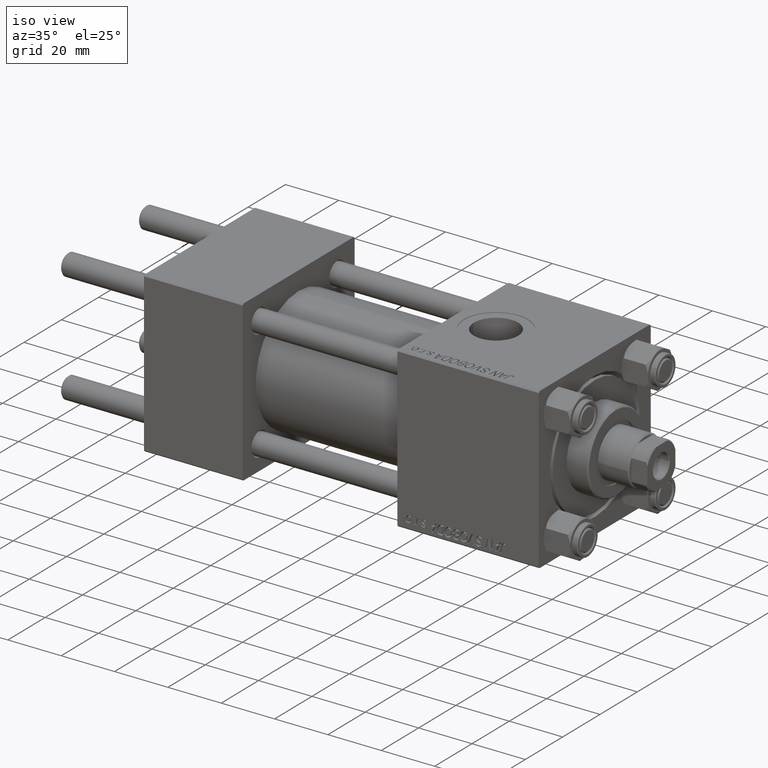
[diagram: clean part render]
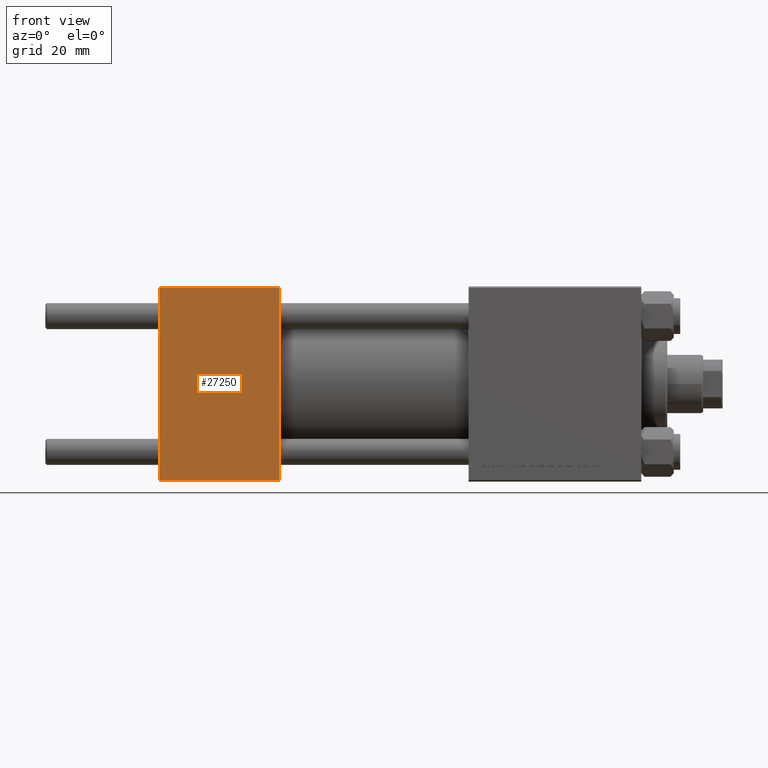
[diagram: tour spotlight — one face highlighted and labeled with its STEP entity id]
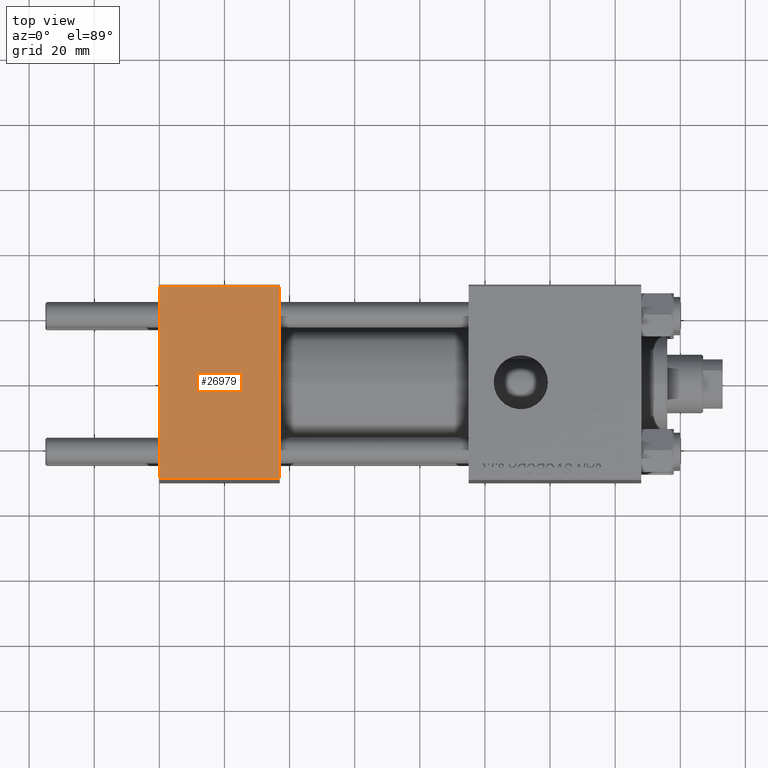
[diagram: tour spotlight — one face highlighted and labeled with its STEP entity id]
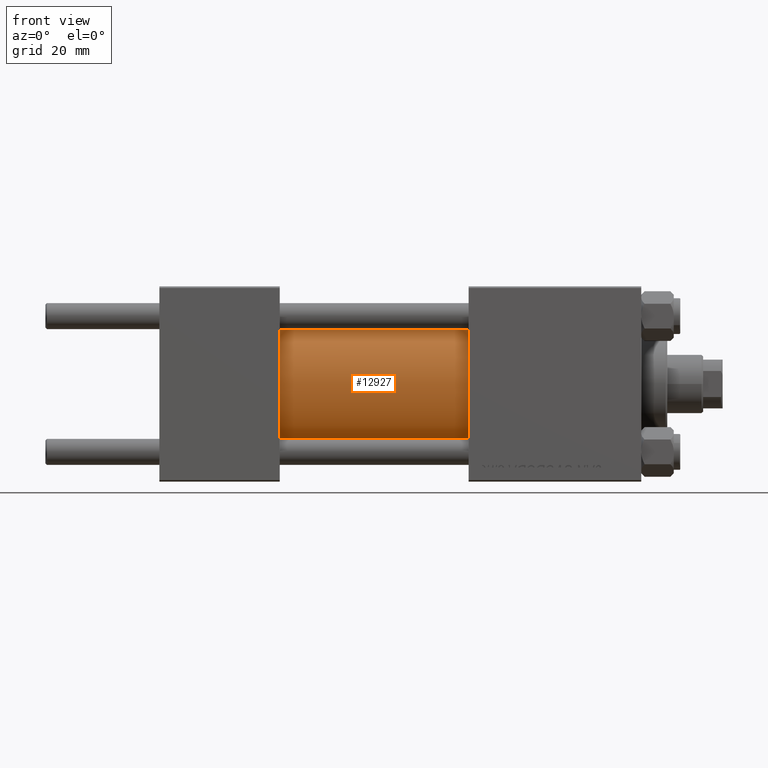
[diagram: tour spotlight — one face highlighted and labeled with its STEP entity id]
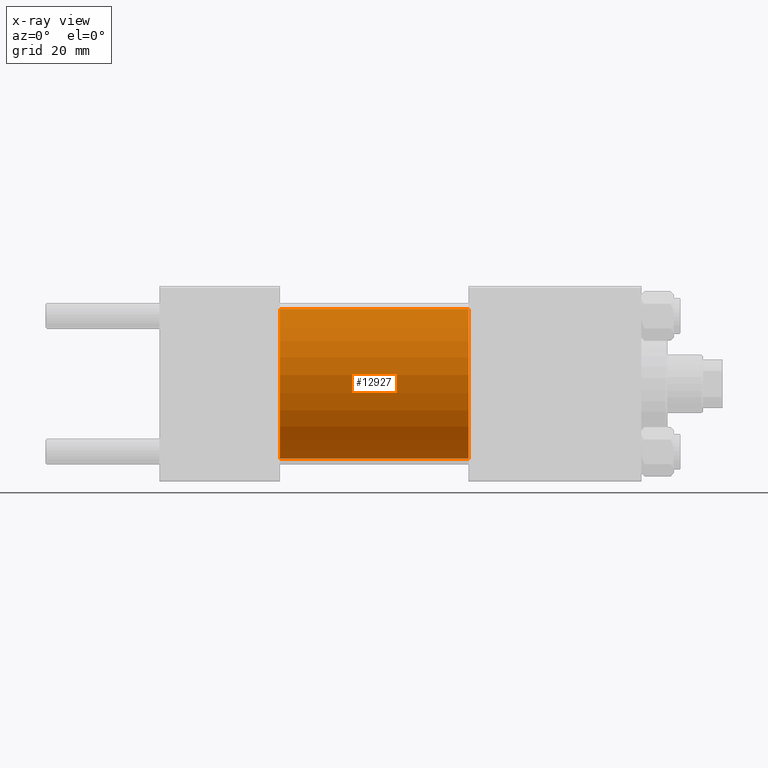
[diagram: x-ray of the same camera — body ghosted, this tour face saturated]
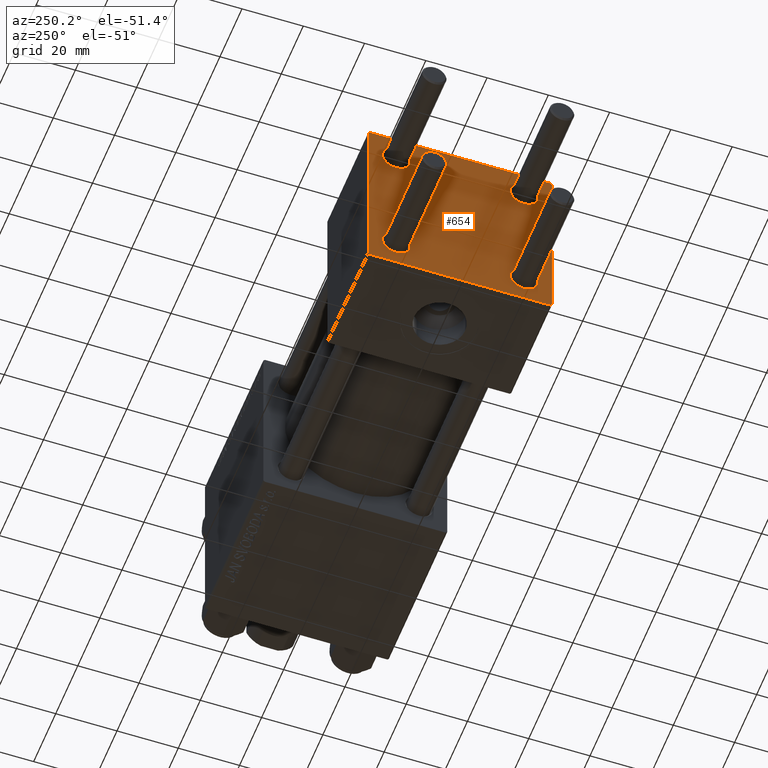
[diagram: tour spotlight — one face highlighted and labeled with its STEP entity id]
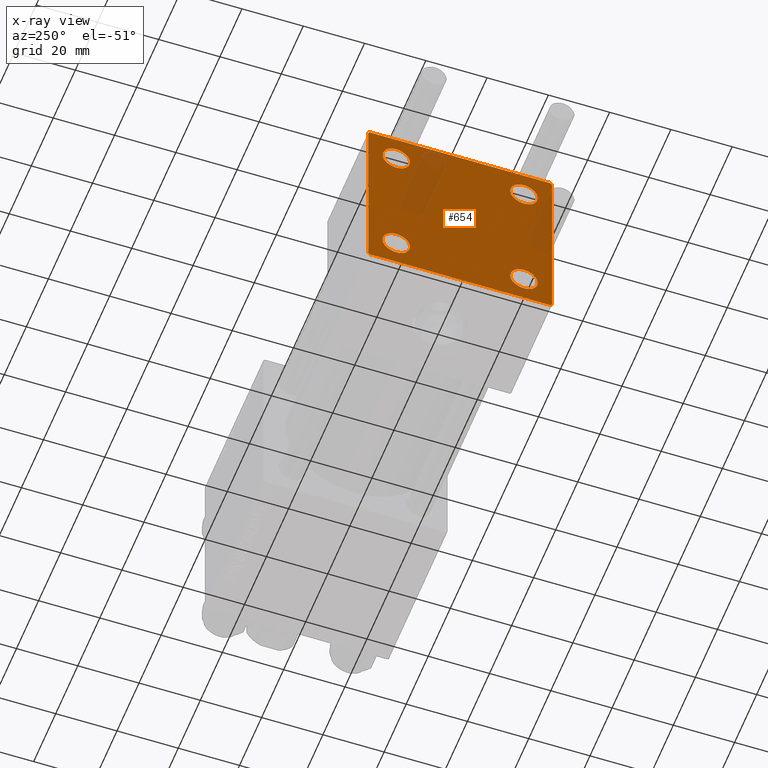
[diagram: x-ray of the same camera — body ghosted, this tour face saturated]
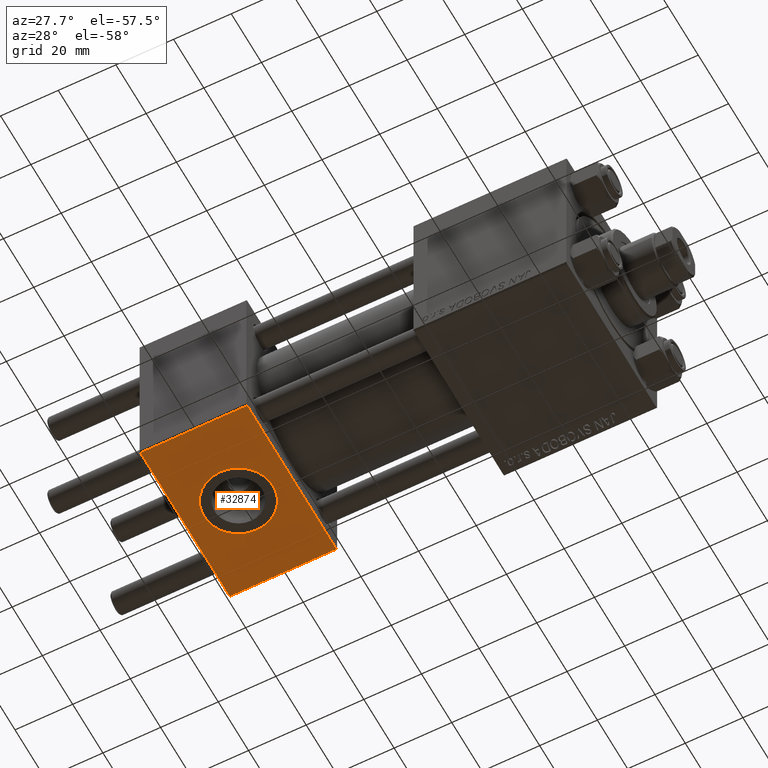
[diagram: tour spotlight — one face highlighted and labeled with its STEP entity id]
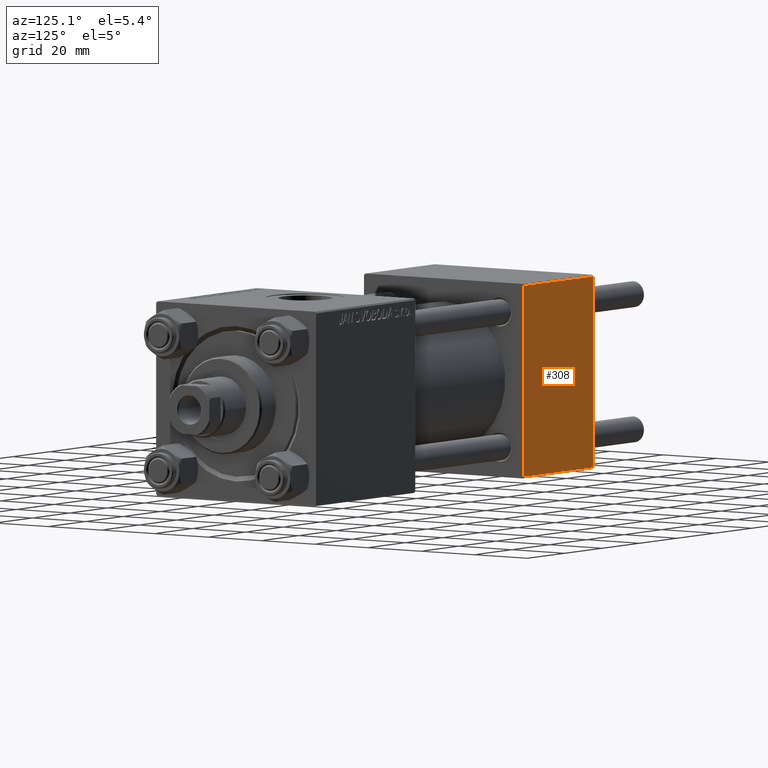
[diagram: tour spotlight — one face highlighted and labeled with its STEP entity id]
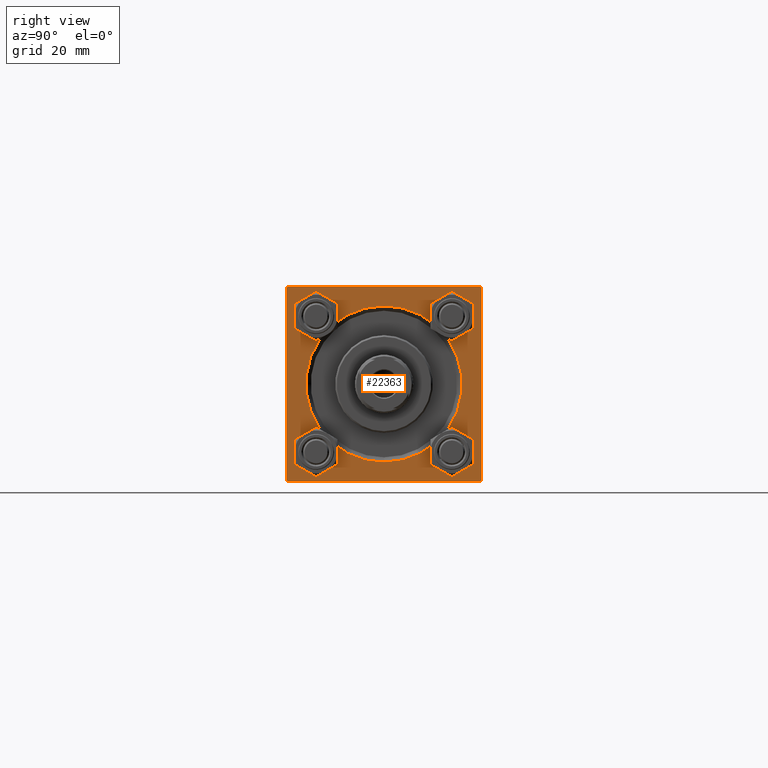
[diagram: tour spotlight — one face highlighted and labeled with its STEP entity id]
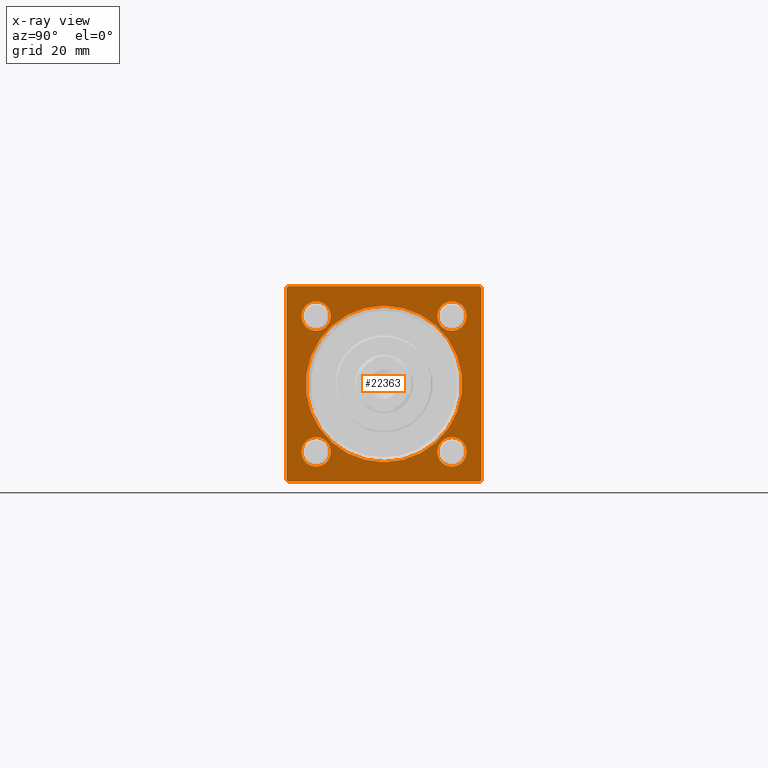
[diagram: x-ray of the same camera — body ghosted, this tour face saturated]
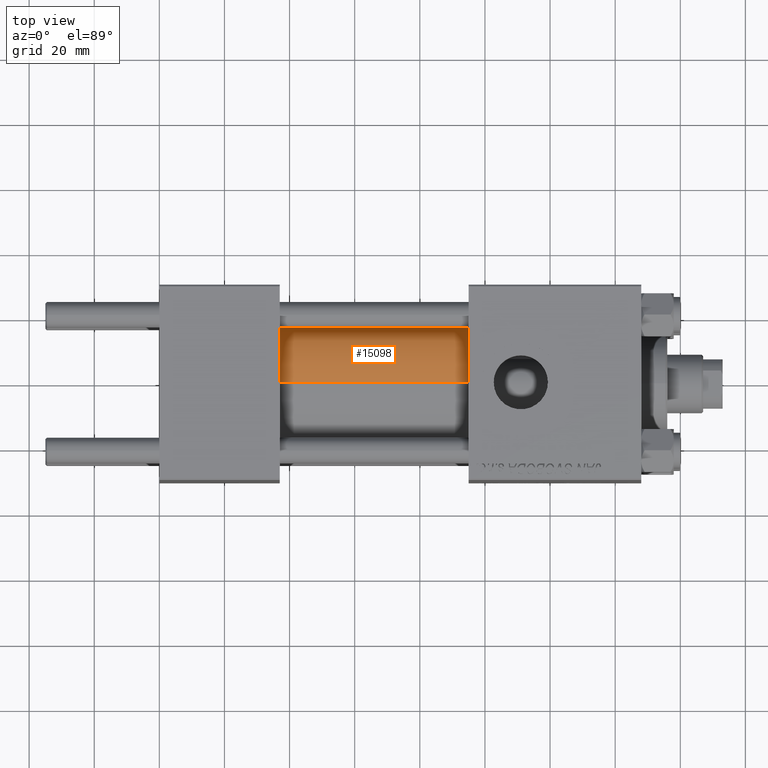
[diagram: tour spotlight — one face highlighted and labeled with its STEP entity id]
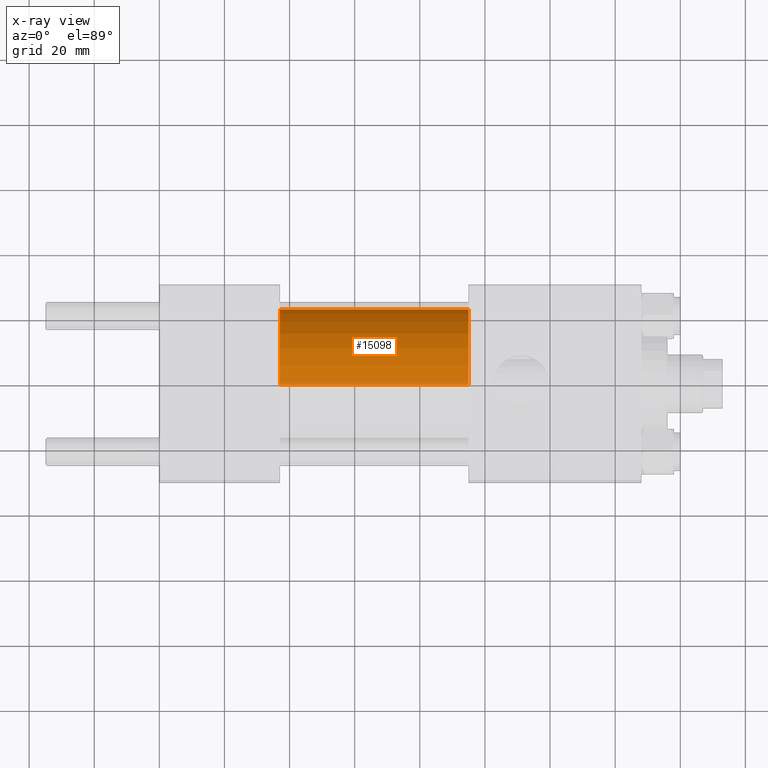
[diagram: x-ray of the same camera — body ghosted, this tour face saturated]
A machine part: a face-by-face anatomy tour. The part has 1134 B-rep faces; the first image is the clean iso view, then the 8 largest visible faces are spotlighted one at a time (largest first), each with its STEP entity span.

Face 1 — front view, entity #27250. In plain terms, the highlighted planar face has unit normal (0, 1, 0).
Definition (entity closure, byte-faithful):
#450 = DIRECTION ( 'NONE',  ( -1.000000000000000000, 0.000000000000000000, 0.000000000000000000 ) ) ;
#3045 = EDGE_CURVE ( 'NONE', #5350, #38853, #43636, .T. ) ;
#3628 = FACE_OUTER_BOUND ( 'NONE', #23692, .T. ) ;
#3634 = CARTESIAN_POINT ( 'NONE',  ( 0.000000000000000000, -30.00000000000000000, -29.50000000000001776 ) ) ;
#4241 = LINE ( 'NONE', #15364, #35834 ) ;
#5350 = VERTEX_POINT ( 'NONE', #17236 ) ;
#9232 = VECTOR ( 'NONE', #16888, 1000.000000000000000 ) ;
#11129 = VERTEX_POINT ( 'NONE', #25975 ) ;
#11260 = ORIENTED_EDGE ( 'NONE', *, *, #3045, .T. ) ;
#14431 = CARTESIAN_POINT ( 'NONE',  ( 37.00000000000000000, -30.00000000000000000, 29.99999999999999289 ) ) ;
#15364 = CARTESIAN_POINT ( 'NONE',  ( 37.00000000000000000, -30.00000000000000000, 29.49999999999999289 ) ) ;
#15486 = EDGE_CURVE ( 'NONE', #46972, #11129, #36639, .T. ) ;
#16234 = VECTOR ( 'NONE', #27997, 1000.000000000000000 ) ;
#16888 = DIRECTION ( 'NONE',  ( 0.000000000000000000, 0.000000000000000000, -1.000000000000000000 ) ) ;
#17236 = CARTESIAN_POINT ( 'NONE',  ( 0.000000000000000000, -30.00000000000000000, 29.49999999999999289 ) ) ;
#19030 = DIRECTION ( 'NONE',  ( -0.000000000000000000, 1.000000000000000000, 0.000000000000000000 ) ) ;
#20418 = CARTESIAN_POINT ( 'NONE',  ( 0.000000000000000000, -30.00000000000000000, 29.99999999999999289 ) ) ;
#20877 = VECTOR ( 'NONE', #41417, 1000.000000000000000 ) ;
#23692 = EDGE_LOOP ( 'NONE', ( #11260, #30772, #34126, #29053 ) ) ;
#23709 = CARTESIAN_POINT ( 'NONE',  ( 37.00000000000000000, -30.00000000000000000, -29.50000000000001776 ) ) ;
#25975 = CARTESIAN_POINT ( 'NONE',  ( 37.00000000000000000, -30.00000000000000000, -29.50000000000001776 ) ) ;
#27250 = ADVANCED_FACE ( 'NONE', ( #3628 ), #42237, .F. ) ;
#27997 = DIRECTION ( 'NONE',  ( 1.000000000000000000, 0.000000000000000000, 0.000000000000000000 ) ) ;
#29053 = ORIENTED_EDGE ( 'NONE', *, *, #36655, .T. ) ;
#29991 = EDGE_CURVE ( 'NONE', #38853, #11129, #49772, .T. ) ;
#30772 = ORIENTED_EDGE ( 'NONE', *, *, #29991, .T. ) ;
#33922 = CARTESIAN_POINT ( 'NONE',  ( 37.00000000000000000, -30.00000000000000000, 29.99999999999999289 ) ) ;
#34126 = ORIENTED_EDGE ( 'NONE', *, *, #15486, .F. ) ;
#35834 = VECTOR ( 'NONE', #450, 1000.000000000000000 ) ;
#36639 = LINE ( 'NONE', #14431, #20877 ) ;
#36655 = EDGE_CURVE ( 'NONE', #46972, #5350, #4241, .T. ) ;
#38853 = VERTEX_POINT ( 'NONE', #3634 ) ;
#39591 = CARTESIAN_POINT ( 'NONE',  ( 37.00000000000000000, -30.00000000000000000, 29.49999999999999289 ) ) ;
#41417 = DIRECTION ( 'NONE',  ( 0.000000000000000000, 0.000000000000000000, -1.000000000000000000 ) ) ;
#42237 = PLANE ( 'NONE',  #48541 ) ;
#43636 = LINE ( 'NONE', #20418, #9232 ) ;
#46972 = VERTEX_POINT ( 'NONE', #39591 ) ;
#48541 = AXIS2_PLACEMENT_3D ( 'NONE', #33922, #19030, #48807 ) ;
#48807 = DIRECTION ( 'NONE',  ( 0.000000000000000000, -0.000000000000000000, 1.000000000000000000 ) ) ;
#49772 = LINE ( 'NONE', #23709, #16234 ) ;

Face 2 — top view, entity #26979. In plain terms, the highlighted planar face has unit normal (0, 0, -1).
Definition (entity closure, byte-faithful):
#4334 = LINE ( 'NONE', #12925, #36756 ) ;
#4792 = VECTOR ( 'NONE', #43562, 1000.000000000000000 ) ;
#7649 = ORIENTED_EDGE ( 'NONE', *, *, #41202, .T. ) ;
#8932 = ORIENTED_EDGE ( 'NONE', *, *, #13748, .T. ) ;
#9465 = CARTESIAN_POINT ( 'NONE',  ( 37.00000000000000000, 29.99999999999999289, 30.00000000000000000 ) ) ;
#9786 = DIRECTION ( 'NONE',  ( 0.000000000000000000, 1.156482317317871725E-16, -1.000000000000000000 ) ) ;
#9812 = CARTESIAN_POINT ( 'NONE',  ( 37.00000000000000000, -29.50000000000000000, 29.99999999999999289 ) ) ;
#11785 = LINE ( 'NONE', #20591, #4792 ) ;
#12207 = CARTESIAN_POINT ( 'NONE',  ( 0.000000000000000000, 29.49999999999999289, 30.00000000000000000 ) ) ;
#12925 = CARTESIAN_POINT ( 'NONE',  ( 0.000000000000000000, 29.99999999999999289, 30.00000000000000000 ) ) ;
#13748 = EDGE_CURVE ( 'NONE', #46529, #39802, #11785, .T. ) ;
#16322 = VERTEX_POINT ( 'NONE', #18468 ) ;
#18296 = CARTESIAN_POINT ( 'NONE',  ( 37.00000000000000000, 29.49999999999999289, 30.00000000000000000 ) ) ;
#18468 = CARTESIAN_POINT ( 'NONE',  ( 0.000000000000000000, -29.49999999999998579, 29.99999999999999289 ) ) ;
#18726 = AXIS2_PLACEMENT_3D ( 'NONE', #31806, #9786, #47214 ) ;
#20063 = LINE ( 'NONE', #9465, #31793 ) ;
#20591 = CARTESIAN_POINT ( 'NONE',  ( 0.000000000000000000, 29.49999999999999289, 30.00000000000000000 ) ) ;
#21535 = CARTESIAN_POINT ( 'NONE',  ( 37.00000000000000000, -29.49999999999998579, 29.99999999999999289 ) ) ;
#25182 = PLANE ( 'NONE',  #18726 ) ;
#25426 = FACE_OUTER_BOUND ( 'NONE', #37787, .T. ) ;
#26979 = ADVANCED_FACE ( 'NONE', ( #25426 ), #25182, .F. ) ;
#28978 = LINE ( 'NONE', #9812, #30567 ) ;
#30284 = ORIENTED_EDGE ( 'NONE', *, *, #47144, .T. ) ;
#30567 = VECTOR ( 'NONE', #36795, 1000.000000000000000 ) ;
#31793 = VECTOR ( 'NONE', #35706, 1000.000000000000000 ) ;
#31806 = CARTESIAN_POINT ( 'NONE',  ( 37.00000000000000000, 29.99999999999999289, 30.00000000000000000 ) ) ;
#35706 = DIRECTION ( 'NONE',  ( 0.000000000000000000, -1.000000000000000000, -1.156482317317871725E-16 ) ) ;
#36198 = EDGE_CURVE ( 'NONE', #46529, #47744, #20063, .T. ) ;
#36756 = VECTOR ( 'NONE', #42683, 1000.000000000000000 ) ;
#36795 = DIRECTION ( 'NONE',  ( 1.000000000000000000, 0.000000000000000000, 0.000000000000000000 ) ) ;
#37787 = EDGE_LOOP ( 'NONE', ( #7649, #30284, #40263, #8932 ) ) ;
#39802 = VERTEX_POINT ( 'NONE', #12207 ) ;
#40263 = ORIENTED_EDGE ( 'NONE', *, *, #36198, .F. ) ;
#41202 = EDGE_CURVE ( 'NONE', #39802, #16322, #4334, .T. ) ;
#42683 = DIRECTION ( 'NONE',  ( 0.000000000000000000, -1.000000000000000000, -1.156482317317871725E-16 ) ) ;
#43562 = DIRECTION ( 'NONE',  ( -1.000000000000000000, 0.000000000000000000, 0.000000000000000000 ) ) ;
#46529 = VERTEX_POINT ( 'NONE', #18296 ) ;
#47144 = EDGE_CURVE ( 'NONE', #16322, #47744, #28978, .T. ) ;
#47214 = DIRECTION ( 'NONE',  ( 0.000000000000000000, 1.000000000000000000, 1.156482317317871725E-16 ) ) ;
#47744 = VERTEX_POINT ( 'NONE', #21535 ) ;

Face 3 — front view, entity #12927. An x-ray twin of the same camera follows (body ghosted, this face saturated) — the face is partly hidden behind the body. In plain terms, the highlighted cylindrical surface (partial cylindrical patch) has radius 23 mm, axis along (-1, -0, -0).
Definition (entity closure, byte-faithful):
#438 = CARTESIAN_POINT ( 'NONE',  ( 95.00000000000000000, 0.000000000000000000, 23.00000000000000000 ) ) ;
#1209 = CARTESIAN_POINT ( 'NONE',  ( 95.00000000000000000, 0.000000000000000000, 23.00000000000000000 ) ) ;
#1888 = CYLINDRICAL_SURFACE ( 'NONE', #15842, 23.00000000000000000 ) ;
#1906 = EDGE_CURVE ( 'NONE', #12441, #39209, #23956, .T. ) ;
#2383 = DIRECTION ( 'NONE',  ( 0.000000000000000000, 0.000000000000000000, 1.000000000000000000 ) ) ;
#2573 = DIRECTION ( 'NONE',  ( 0.000000000000000000, 0.000000000000000000, -1.000000000000000000 ) ) ;
#5090 = CARTESIAN_POINT ( 'NONE',  ( 95.00000000000000000, 2.816687638038911957E-15, -23.00000000000000000 ) ) ;
#5593 = VECTOR ( 'NONE', #12563, 1000.000000000000000 ) ;
#6378 = CARTESIAN_POINT ( 'NONE',  ( 95.00000000000000000, 0.000000000000000000, 0.000000000000000000 ) ) ;
#8178 = CARTESIAN_POINT ( 'NONE',  ( 37.00000000000000000, 2.816687638038911957E-15, -23.00000000000000000 ) ) ;
#9200 = ORIENTED_EDGE ( 'NONE', *, *, #44729, .F. ) ;
#10316 = CARTESIAN_POINT ( 'NONE',  ( 37.00000000000000000, 0.000000000000000000, 23.00000000000000000 ) ) ;
#12408 = DIRECTION ( 'NONE',  ( -1.000000000000000000, -0.000000000000000000, -0.000000000000000000 ) ) ;
#12441 = VERTEX_POINT ( 'NONE', #1209 ) ;
#12563 = DIRECTION ( 'NONE',  ( -1.000000000000000000, -0.000000000000000000, -0.000000000000000000 ) ) ;
#12777 = DIRECTION ( 'NONE',  ( 1.000000000000000000, 0.000000000000000000, 0.000000000000000000 ) ) ;
#12892 = CARTESIAN_POINT ( 'NONE',  ( 37.00000000000000000, 0.000000000000000000, 0.000000000000000000 ) ) ;
#12927 = ADVANCED_FACE ( 'NONE', ( #36706 ), #1888, .T. ) ;
#14795 = EDGE_CURVE ( 'NONE', #41622, #23012, #49908, .T. ) ;
#15842 = AXIS2_PLACEMENT_3D ( 'NONE', #40006, #20581, #2383 ) ;
#16437 = LINE ( 'NONE', #5090, #31103 ) ;
#19620 = LINE ( 'NONE', #438, #5593 ) ;
#20581 = DIRECTION ( 'NONE',  ( -1.000000000000000000, -0.000000000000000000, -0.000000000000000000 ) ) ;
#23012 = VERTEX_POINT ( 'NONE', #8178 ) ;
#23145 = AXIS2_PLACEMENT_3D ( 'NONE', #6378, #12777, #2573 ) ;
#23956 = CIRCLE ( 'NONE', #23145, 23.00000000000000000 ) ;
#25630 = ORIENTED_EDGE ( 'NONE', *, *, #14795, .T. ) ;
#28267 = DIRECTION ( 'NONE',  ( 0.000000000000000000, 0.000000000000000000, 1.000000000000000000 ) ) ;
#30402 = ORIENTED_EDGE ( 'NONE', *, *, #49546, .T. ) ;
#31103 = VECTOR ( 'NONE', #12408, 1000.000000000000000 ) ;
#36706 = FACE_OUTER_BOUND ( 'NONE', #39212, .T. ) ;
#39209 = VERTEX_POINT ( 'NONE', #41170 ) ;
#39212 = EDGE_LOOP ( 'NONE', ( #9200, #44735, #30402, #25630 ) ) ;
#40006 = CARTESIAN_POINT ( 'NONE',  ( 95.00000000000000000, 0.000000000000000000, 0.000000000000000000 ) ) ;
#41170 = CARTESIAN_POINT ( 'NONE',  ( 95.00000000000000000, 2.816687638038911957E-15, -23.00000000000000000 ) ) ;
#41622 = VERTEX_POINT ( 'NONE', #10316 ) ;
#41728 = AXIS2_PLACEMENT_3D ( 'NONE', #12892, #42647, #28267 ) ;
#42647 = DIRECTION ( 'NONE',  ( 1.000000000000000000, -0.000000000000000000, 0.000000000000000000 ) ) ;
#44729 = EDGE_CURVE ( 'NONE', #39209, #23012, #16437, .T. ) ;
#44735 = ORIENTED_EDGE ( 'NONE', *, *, #1906, .F. ) ;
#49546 = EDGE_CURVE ( 'NONE', #12441, #41622, #19620, .T. ) ;
#49908 = CIRCLE ( 'NONE', #41728, 23.00000000000000000 ) ;

Face 4 — auxiliary view, entity #654. An x-ray twin of the same camera follows (body ghosted, this face saturated) — the face is partly hidden behind the body. In plain terms, the highlighted planar face has unit normal (-1, 0, 0).
Definition (entity closure, byte-faithful):
#52 = EDGE_LOOP ( 'NONE', ( #25192, #8840 ) ) ;
#654 = ADVANCED_FACE ( 'NONE', ( #9948, #29112, #2858, #29357, #13737 ), #36441, .T. ) ;
#1920 = ORIENTED_EDGE ( 'NONE', *, *, #21245, .T. ) ;
#2425 = CARTESIAN_POINT ( 'NONE',  ( 0.000000000000000000, -20.84999999999999076, 25.35000000000002274 ) ) ;
#2731 = DIRECTION ( 'NONE',  ( 1.000000000000000000, -0.000000000000000000, 0.000000000000000000 ) ) ;
#2858 = FACE_BOUND ( 'NONE', #23574, .T. ) ;
#2938 = CIRCLE ( 'NONE', #13445, 4.500000000000017764 ) ;
#3021 = VERTEX_POINT ( 'NONE', #20166 ) ;
#3045 = EDGE_CURVE ( 'NONE', #5350, #38853, #43636, .T. ) ;
#3265 = LINE ( 'NONE', #37328, #41020 ) ;
#3634 = CARTESIAN_POINT ( 'NONE',  ( 0.000000000000000000, -30.00000000000000000, -29.50000000000001776 ) ) ;
#3781 = CARTESIAN_POINT ( 'NONE',  ( 0.000000000000000000, 20.84999999999999787, 25.35000000000001918 ) ) ;
#4334 = LINE ( 'NONE', #12925, #36756 ) ;
#4879 = DIRECTION ( 'NONE',  ( 0.000000000000000000, 0.7071067811865474617, -0.7071067811865474617 ) ) ;
#5350 = VERTEX_POINT ( 'NONE', #17236 ) ;
#5885 = VECTOR ( 'NONE', #10201, 1000.000000000000000 ) ;
#6441 = ORIENTED_EDGE ( 'NONE', *, *, #8352, .T. ) ;
#6557 = DIRECTION ( 'NONE',  ( 1.000000000000000000, -0.000000000000000000, 0.000000000000000000 ) ) ;
#7846 = EDGE_CURVE ( 'NONE', #41516, #18945, #21159, .T. ) ;
#8352 = EDGE_CURVE ( 'NONE', #16837, #49414, #40961, .T. ) ;
#8840 = ORIENTED_EDGE ( 'NONE', *, *, #7846, .T. ) ;
#9232 = VECTOR ( 'NONE', #16888, 1000.000000000000000 ) ;
#9702 = DIRECTION ( 'NONE',  ( -1.000000000000000000, 0.000000000000000000, -0.000000000000000000 ) ) ;
#9730 = CARTESIAN_POINT ( 'NONE',  ( 0.000000000000000000, 20.84999999999999787, 16.34999999999998366 ) ) ;
#9948 = FACE_BOUND ( 'NONE', #19121, .T. ) ;
#10201 = DIRECTION ( 'NONE',  ( 0.000000000000000000, -1.000000000000000000, -1.156482317317871725E-16 ) ) ;
#10222 = AXIS2_PLACEMENT_3D ( 'NONE', #12300, #32703, #28680 ) ;
#10232 = EDGE_LOOP ( 'NONE', ( #18129, #11372, #6441, #12780, #15019, #21712, #11984, #20051 ) ) ;
#10663 = CIRCLE ( 'NONE', #29986, 4.500000000000017764 ) ;
#10696 = CARTESIAN_POINT ( 'NONE',  ( 0.000000000000000000, 0.000000000000000000, 0.000000000000000000 ) ) ;
#10870 = EDGE_CURVE ( 'NONE', #5350, #16322, #10897, .T. ) ;
#10897 = LINE ( 'NONE', #33156, #41705 ) ;
#11372 = ORIENTED_EDGE ( 'NONE', *, *, #35005, .T. ) ;
#11396 = DIRECTION ( 'NONE',  ( -0.000000000000000000, 0.7071067811865474617, 0.7071067811865474617 ) ) ;
#11984 = ORIENTED_EDGE ( 'NONE', *, *, #41202, .F. ) ;
#11987 = CARTESIAN_POINT ( 'NONE',  ( 0.000000000000000000, 20.84999999999999787, -20.85000000000000142 ) ) ;
#12161 = ORIENTED_EDGE ( 'NONE', *, *, #40467, .T. ) ;
#12207 = CARTESIAN_POINT ( 'NONE',  ( 0.000000000000000000, 29.49999999999999289, 30.00000000000000000 ) ) ;
#12239 = EDGE_CURVE ( 'NONE', #33372, #24975, #2938, .T. ) ;
#12300 = CARTESIAN_POINT ( 'NONE',  ( 0.000000000000000000, 20.84999999999999787, 20.85000000000000142 ) ) ;
#12780 = ORIENTED_EDGE ( 'NONE', *, *, #36210, .T. ) ;
#12925 = CARTESIAN_POINT ( 'NONE',  ( 0.000000000000000000, 29.99999999999999289, 30.00000000000000000 ) ) ;
#13445 = AXIS2_PLACEMENT_3D ( 'NONE', #48198, #6557, #32554 ) ;
#13556 = LINE ( 'NONE', #21117, #26892 ) ;
#13598 = ORIENTED_EDGE ( 'NONE', *, *, #36315, .T. ) ;
#13737 = FACE_OUTER_BOUND ( 'NONE', #10232, .T. ) ;
#14229 = DIRECTION ( 'NONE',  ( -0.000000000000000000, 0.000000000000000000, 1.000000000000000000 ) ) ;
#14409 = DIRECTION ( 'NONE',  ( 0.000000000000000000, 0.000000000000000000, 1.000000000000000000 ) ) ;
#14891 = CARTESIAN_POINT ( 'NONE',  ( 0.000000000000000000, -20.84999999999999076, 20.85000000000000497 ) ) ;
#15019 = ORIENTED_EDGE ( 'NONE', *, *, #3045, .F. ) ;
#16322 = VERTEX_POINT ( 'NONE', #18468 ) ;
#16837 = VERTEX_POINT ( 'NONE', #39323 ) ;
#16888 = DIRECTION ( 'NONE',  ( 0.000000000000000000, 0.000000000000000000, -1.000000000000000000 ) ) ;
#17236 = CARTESIAN_POINT ( 'NONE',  ( 0.000000000000000000, -30.00000000000000000, 29.49999999999999289 ) ) ;
#17515 = EDGE_CURVE ( 'NONE', #39802, #3021, #39434, .T. ) ;
#17930 = CARTESIAN_POINT ( 'NONE',  ( 0.000000000000000000, 20.84999999999999787, -25.35000000000001918 ) ) ;
#18129 = ORIENTED_EDGE ( 'NONE', *, *, #18830, .T. ) ;
#18309 = ORIENTED_EDGE ( 'NONE', *, *, #12239, .T. ) ;
#18468 = CARTESIAN_POINT ( 'NONE',  ( 0.000000000000000000, -29.49999999999998579, 29.99999999999999289 ) ) ;
#18660 = DIRECTION ( 'NONE',  ( 0.000000000000000000, 0.000000000000000000, -1.000000000000000000 ) ) ;
#18830 = EDGE_CURVE ( 'NONE', #3021, #20599, #3265, .T. ) ;
#18945 = VERTEX_POINT ( 'NONE', #45405 ) ;
#19045 = AXIS2_PLACEMENT_3D ( 'NONE', #14891, #41626, #37590 ) ;
#19071 = CARTESIAN_POINT ( 'NONE',  ( 0.000000000000000000, -20.84999999999999076, -20.85000000000000497 ) ) ;
#19121 = EDGE_LOOP ( 'NONE', ( #12161, #18309 ) ) ;
#19774 = AXIS2_PLACEMENT_3D ( 'NONE', #10696, #9702, #14229 ) ;
#20051 = ORIENTED_EDGE ( 'NONE', *, *, #17515, .T. ) ;
#20166 = CARTESIAN_POINT ( 'NONE',  ( 0.000000000000000000, 29.99999999999999289, 29.50000000000000000 ) ) ;
#20418 = CARTESIAN_POINT ( 'NONE',  ( 0.000000000000000000, -30.00000000000000000, 29.99999999999999289 ) ) ;
#20599 = VERTEX_POINT ( 'NONE', #34938 ) ;
#21117 = CARTESIAN_POINT ( 'NONE',  ( 0.000000000000000000, 29.74999999999957723, -29.75000000000040501 ) ) ;
#21159 = CIRCLE ( 'NONE', #27580, 4.500000000000017764 ) ;
#21245 = EDGE_CURVE ( 'NONE', #48244, #36743, #31434, .T. ) ;
#21712 = ORIENTED_EDGE ( 'NONE', *, *, #10870, .T. ) ;
#21905 = CARTESIAN_POINT ( 'NONE',  ( 0.000000000000000000, -20.84999999999999076, -20.85000000000000497 ) ) ;
#22669 = EDGE_CURVE ( 'NONE', #18945, #41516, #33060, .T. ) ;
#23574 = EDGE_LOOP ( 'NONE', ( #47550, #1920 ) ) ;
#23729 = CIRCLE ( 'NONE', #47903, 4.500000000000017764 ) ;
#23730 = CARTESIAN_POINT ( 'NONE',  ( 0.000000000000000000, -20.84999999999999076, 16.34999999999998721 ) ) ;
#23845 = DIRECTION ( 'NONE',  ( 1.000000000000000000, -0.000000000000000000, 0.000000000000000000 ) ) ;
#24032 = VECTOR ( 'NONE', #4879, 1000.000000000000114 ) ;
#24975 = VERTEX_POINT ( 'NONE', #2425 ) ;
#25192 = ORIENTED_EDGE ( 'NONE', *, *, #22669, .T. ) ;
#25353 = VECTOR ( 'NONE', #43026, 1000.000000000000114 ) ;
#25591 = DIRECTION ( 'NONE',  ( 1.000000000000000000, -0.000000000000000000, 0.000000000000000000 ) ) ;
#26656 = AXIS2_PLACEMENT_3D ( 'NONE', #19071, #34458, #31409 ) ;
#26892 = VECTOR ( 'NONE', #48843, 999.9999999999998863 ) ;
#27580 = AXIS2_PLACEMENT_3D ( 'NONE', #21905, #2731, #33510 ) ;
#28634 = CARTESIAN_POINT ( 'NONE',  ( 0.000000000000000000, -29.75000000000001066, -29.75000000000001066 ) ) ;
#28680 = DIRECTION ( 'NONE',  ( 0.000000000000000000, 0.000000000000000000, 1.000000000000000000 ) ) ;
#29112 = FACE_BOUND ( 'NONE', #52, .T. ) ;
#29357 = FACE_BOUND ( 'NONE', #43472, .T. ) ;
#29675 = CARTESIAN_POINT ( 'NONE',  ( 0.000000000000000000, 20.84999999999999787, -16.34999999999998366 ) ) ;
#29986 = AXIS2_PLACEMENT_3D ( 'NONE', #11987, #23845, #35195 ) ;
#30495 = EDGE_CURVE ( 'NONE', #36743, #48244, #10663, .T. ) ;
#31409 = DIRECTION ( 'NONE',  ( 0.000000000000000000, 0.000000000000000000, 1.000000000000000000 ) ) ;
#31434 = CIRCLE ( 'NONE', #46756, 4.500000000000017764 ) ;
#32345 = CARTESIAN_POINT ( 'NONE',  ( 0.000000000000000000, -29.50000000000000000, -30.00000000000000711 ) ) ;
#32554 = DIRECTION ( 'NONE',  ( 0.000000000000000000, 0.000000000000000000, 1.000000000000000000 ) ) ;
#32703 = DIRECTION ( 'NONE',  ( 1.000000000000000000, -0.000000000000000000, 0.000000000000000000 ) ) ;
#33060 = CIRCLE ( 'NONE', #26656, 4.500000000000017764 ) ;
#33156 = CARTESIAN_POINT ( 'NONE',  ( -0.000000000000000000, -29.74999999999999645, 29.74999999999999645 ) ) ;
#33372 = VERTEX_POINT ( 'NONE', #23730 ) ;
#33510 = DIRECTION ( 'NONE',  ( 0.000000000000000000, 0.000000000000000000, 1.000000000000000000 ) ) ;
#34434 = VERTEX_POINT ( 'NONE', #3781 ) ;
#34458 = DIRECTION ( 'NONE',  ( 1.000000000000000000, -0.000000000000000000, 0.000000000000000000 ) ) ;
#34938 = CARTESIAN_POINT ( 'NONE',  ( 0.000000000000000000, 29.99999999999999289, -29.50000000000000000 ) ) ;
#35005 = EDGE_CURVE ( 'NONE', #20599, #16837, #13556, .T. ) ;
#35195 = DIRECTION ( 'NONE',  ( 0.000000000000000000, 0.000000000000000000, 1.000000000000000000 ) ) ;
#36210 = EDGE_CURVE ( 'NONE', #49414, #38853, #47315, .T. ) ;
#36315 = EDGE_CURVE ( 'NONE', #34434, #44118, #23729, .T. ) ;
#36441 = PLANE ( 'NONE',  #19774 ) ;
#36743 = VERTEX_POINT ( 'NONE', #29675 ) ;
#36756 = VECTOR ( 'NONE', #42683, 1000.000000000000000 ) ;
#37111 = DIRECTION ( 'NONE',  ( 1.000000000000000000, -0.000000000000000000, 0.000000000000000000 ) ) ;
#37328 = CARTESIAN_POINT ( 'NONE',  ( 0.000000000000000000, 29.99999999999999289, 30.00000000000000000 ) ) ;
#37590 = DIRECTION ( 'NONE',  ( 0.000000000000000000, 0.000000000000000000, 1.000000000000000000 ) ) ;
#38853 = VERTEX_POINT ( 'NONE', #3634 ) ;
#39323 = CARTESIAN_POINT ( 'NONE',  ( 0.000000000000000000, 29.49999999999997868, -30.00000000000000000 ) ) ;
#39434 = LINE ( 'NONE', #43232, #24032 ) ;
#39802 = VERTEX_POINT ( 'NONE', #12207 ) ;
#40467 = EDGE_CURVE ( 'NONE', #24975, #33372, #46442, .T. ) ;
#40581 = CARTESIAN_POINT ( 'NONE',  ( 0.000000000000000000, -20.84999999999999076, -25.35000000000002274 ) ) ;
#40722 = CARTESIAN_POINT ( 'NONE',  ( 0.000000000000000000, 20.84999999999999787, 20.85000000000000142 ) ) ;
#40832 = CIRCLE ( 'NONE', #10222, 4.500000000000017764 ) ;
#40896 = CARTESIAN_POINT ( 'NONE',  ( 0.000000000000000000, 20.84999999999999787, -20.85000000000000142 ) ) ;
#40961 = LINE ( 'NONE', #48053, #5885 ) ;
#40967 = DIRECTION ( 'NONE',  ( 0.000000000000000000, 0.000000000000000000, 1.000000000000000000 ) ) ;
#41020 = VECTOR ( 'NONE', #18660, 1000.000000000000000 ) ;
#41202 = EDGE_CURVE ( 'NONE', #39802, #16322, #4334, .T. ) ;
#41516 = VERTEX_POINT ( 'NONE', #40581 ) ;
#41626 = DIRECTION ( 'NONE',  ( 1.000000000000000000, -0.000000000000000000, 0.000000000000000000 ) ) ;
#41705 = VECTOR ( 'NONE', #11396, 1000.000000000000114 ) ;
#41789 = EDGE_CURVE ( 'NONE', #44118, #34434, #40832, .T. ) ;
#42683 = DIRECTION ( 'NONE',  ( 0.000000000000000000, -1.000000000000000000, -1.156482317317871725E-16 ) ) ;
#43026 = DIRECTION ( 'NONE',  ( 0.000000000000000000, -0.7071067811865474617, 0.7071067811865474617 ) ) ;
#43232 = CARTESIAN_POINT ( 'NONE',  ( 0.000000000000000000, 29.74999999999999645, 29.74999999999999645 ) ) ;
#43472 = EDGE_LOOP ( 'NONE', ( #13598, #48160 ) ) ;
#43636 = LINE ( 'NONE', #20418, #9232 ) ;
#44118 = VERTEX_POINT ( 'NONE', #9730 ) ;
#45405 = CARTESIAN_POINT ( 'NONE',  ( 0.000000000000000000, -20.84999999999999076, -16.34999999999998721 ) ) ;
#46442 = CIRCLE ( 'NONE', #19045, 4.500000000000017764 ) ;
#46756 = AXIS2_PLACEMENT_3D ( 'NONE', #40896, #37111, #14409 ) ;
#47315 = LINE ( 'NONE', #28634, #25353 ) ;
#47550 = ORIENTED_EDGE ( 'NONE', *, *, #30495, .T. ) ;
#47903 = AXIS2_PLACEMENT_3D ( 'NONE', #40722, #25591, #40967 ) ;
#48053 = CARTESIAN_POINT ( 'NONE',  ( 0.000000000000000000, 29.99999999999999289, -30.00000000000000000 ) ) ;
#48160 = ORIENTED_EDGE ( 'NONE', *, *, #41789, .T. ) ;
#48198 = CARTESIAN_POINT ( 'NONE',  ( 0.000000000000000000, -20.84999999999999076, 20.85000000000000497 ) ) ;
#48244 = VERTEX_POINT ( 'NONE', #17930 ) ;
#48843 = DIRECTION ( 'NONE',  ( -0.000000000000000000, -0.7071067811865574537, -0.7071067811865376918 ) ) ;
#49414 = VERTEX_POINT ( 'NONE', #32345 ) ;

Face 5 — auxiliary view, entity #32874. In plain terms, the highlighted planar face has unit normal (0, 0, -1).
Definition (entity closure, byte-faithful):
#1408 = ORIENTED_EDGE ( 'NONE', *, *, #7157, .T. ) ;
#1583 = AXIS2_PLACEMENT_3D ( 'NONE', #22832, #3900, #41261 ) ;
#1668 = VERTEX_POINT ( 'NONE', #12589 ) ;
#3733 = DIRECTION ( 'NONE',  ( 0.000000000000000000, 1.000000000000000000, 1.156482317317871725E-16 ) ) ;
#3900 = DIRECTION ( 'NONE',  ( 0.000000000000000000, -1.734723475976806848E-16, -1.000000000000000000 ) ) ;
#5885 = VECTOR ( 'NONE', #10201, 1000.000000000000000 ) ;
#7157 = EDGE_CURVE ( 'NONE', #15801, #49414, #48889, .T. ) ;
#7580 = ORIENTED_EDGE ( 'NONE', *, *, #20486, .F. ) ;
#8352 = EDGE_CURVE ( 'NONE', #16837, #49414, #40961, .T. ) ;
#9119 = AXIS2_PLACEMENT_3D ( 'NONE', #42091, #38300, #3733 ) ;
#10201 = DIRECTION ( 'NONE',  ( 0.000000000000000000, -1.000000000000000000, -1.156482317317871725E-16 ) ) ;
#11854 = EDGE_LOOP ( 'NONE', ( #7580, #17405 ) ) ;
#12221 = VERTEX_POINT ( 'NONE', #21205 ) ;
#12589 = CARTESIAN_POINT ( 'NONE',  ( 18.50000000000000000, 12.00000000000000178, -30.00000000000000711 ) ) ;
#13818 = CARTESIAN_POINT ( 'NONE',  ( 37.00000000000000000, 29.49999999999997868, -30.00000000000000000 ) ) ;
#15185 = LINE ( 'NONE', #26543, #43147 ) ;
#15801 = VERTEX_POINT ( 'NONE', #30747 ) ;
#16837 = VERTEX_POINT ( 'NONE', #39323 ) ;
#17405 = ORIENTED_EDGE ( 'NONE', *, *, #18888, .F. ) ;
#18262 = EDGE_CURVE ( 'NONE', #16837, #12221, #48376, .T. ) ;
#18888 = EDGE_CURVE ( 'NONE', #47023, #1668, #28933, .T. ) ;
#19207 = DIRECTION ( 'NONE',  ( 0.000000000000000000, -1.000000000000000000, -1.156482317317871725E-16 ) ) ;
#19733 = ORIENTED_EDGE ( 'NONE', *, *, #18262, .T. ) ;
#20029 = VECTOR ( 'NONE', #29197, 1000.000000000000000 ) ;
#20486 = EDGE_CURVE ( 'NONE', #1668, #47023, #22549, .T. ) ;
#21205 = CARTESIAN_POINT ( 'NONE',  ( 37.00000000000000000, 29.49999999999997868, -30.00000000000000000 ) ) ;
#22549 = CIRCLE ( 'NONE', #1583, 12.00000000000000178 ) ;
#22628 = EDGE_LOOP ( 'NONE', ( #33200, #19733, #39538, #1408 ) ) ;
#22832 = CARTESIAN_POINT ( 'NONE',  ( 18.50000000000000000, 2.651473169999849714E-16, -30.00000000000000355 ) ) ;
#25937 = DIRECTION ( 'NONE',  ( -1.000000000000000000, 0.000000000000000000, 0.000000000000000000 ) ) ;
#26543 = CARTESIAN_POINT ( 'NONE',  ( 37.00000000000000000, 29.99999999999999289, -30.00000000000000000 ) ) ;
#26707 = PLANE ( 'NONE',  #9119 ) ;
#27725 = CARTESIAN_POINT ( 'NONE',  ( 18.50000000000000000, -12.00000000000000178, -30.00000000000000000 ) ) ;
#28933 = CIRCLE ( 'NONE', #34578, 12.00000000000000178 ) ;
#29197 = DIRECTION ( 'NONE',  ( 1.000000000000000000, 0.000000000000000000, 0.000000000000000000 ) ) ;
#29710 = CARTESIAN_POINT ( 'NONE',  ( 0.000000000000000000, -29.50000000000001066, -30.00000000000000711 ) ) ;
#30480 = FACE_OUTER_BOUND ( 'NONE', #22628, .T. ) ;
#30747 = CARTESIAN_POINT ( 'NONE',  ( 37.00000000000000000, -29.50000000000000000, -30.00000000000000711 ) ) ;
#31225 = FACE_BOUND ( 'NONE', #11854, .T. ) ;
#32345 = CARTESIAN_POINT ( 'NONE',  ( 0.000000000000000000, -29.50000000000000000, -30.00000000000000711 ) ) ;
#32874 = ADVANCED_FACE ( 'NONE', ( #31225, #30480 ), #26707, .T. ) ;
#33200 = ORIENTED_EDGE ( 'NONE', *, *, #8352, .F. ) ;
#33545 = DIRECTION ( 'NONE',  ( 0.000000000000000000, -1.734723475976806848E-16, -1.000000000000000000 ) ) ;
#34578 = AXIS2_PLACEMENT_3D ( 'NONE', #44911, #33545, #41868 ) ;
#38300 = DIRECTION ( 'NONE',  ( 0.000000000000000000, 1.156482317317871725E-16, -1.000000000000000000 ) ) ;
#39161 = EDGE_CURVE ( 'NONE', #12221, #15801, #15185, .T. ) ;
#39323 = CARTESIAN_POINT ( 'NONE',  ( 0.000000000000000000, 29.49999999999997868, -30.00000000000000000 ) ) ;
#39538 = ORIENTED_EDGE ( 'NONE', *, *, #39161, .T. ) ;
#40961 = LINE ( 'NONE', #48053, #5885 ) ;
#41261 = DIRECTION ( 'NONE',  ( 0.000000000000000000, 1.000000000000000000, -2.891205793294677833E-16 ) ) ;
#41868 = DIRECTION ( 'NONE',  ( 0.000000000000000000, 1.000000000000000000, -2.891205793294677833E-16 ) ) ;
#42091 = CARTESIAN_POINT ( 'NONE',  ( 37.00000000000000000, 29.99999999999999289, -30.00000000000000000 ) ) ;
#43147 = VECTOR ( 'NONE', #19207, 1000.000000000000000 ) ;
#44911 = CARTESIAN_POINT ( 'NONE',  ( 18.50000000000000000, 2.651473169999849714E-16, -30.00000000000000355 ) ) ;
#45321 = VECTOR ( 'NONE', #25937, 1000.000000000000000 ) ;
#47023 = VERTEX_POINT ( 'NONE', #27725 ) ;
#48053 = CARTESIAN_POINT ( 'NONE',  ( 0.000000000000000000, 29.99999999999999289, -30.00000000000000000 ) ) ;
#48376 = LINE ( 'NONE', #13818, #20029 ) ;
#48889 = LINE ( 'NONE', #29710, #45321 ) ;
#49414 = VERTEX_POINT ( 'NONE', #32345 ) ;

Face 6 — auxiliary view, entity #308. In plain terms, the highlighted planar face has unit normal (0, 1, 0).
Definition (entity closure, byte-faithful):
#308 = ADVANCED_FACE ( 'NONE', ( #36499 ), #1924, .T. ) ;
#1806 = VERTEX_POINT ( 'NONE', #31183 ) ;
#1924 = PLANE ( 'NONE',  #44745 ) ;
#2193 = CARTESIAN_POINT ( 'NONE',  ( 37.00000000000000000, 29.99999999999999289, 30.00000000000000000 ) ) ;
#3021 = VERTEX_POINT ( 'NONE', #20166 ) ;
#3265 = LINE ( 'NONE', #37328, #41020 ) ;
#4797 = ORIENTED_EDGE ( 'NONE', *, *, #11262, .T. ) ;
#11262 = EDGE_CURVE ( 'NONE', #37866, #1806, #25176, .T. ) ;
#13804 = DIRECTION ( 'NONE',  ( -1.000000000000000000, 0.000000000000000000, 0.000000000000000000 ) ) ;
#16334 = DIRECTION ( 'NONE',  ( -0.000000000000000000, 1.000000000000000000, 0.000000000000000000 ) ) ;
#16450 = ORIENTED_EDGE ( 'NONE', *, *, #29585, .T. ) ;
#17556 = DIRECTION ( 'NONE',  ( 1.000000000000000000, 0.000000000000000000, 0.000000000000000000 ) ) ;
#18660 = DIRECTION ( 'NONE',  ( 0.000000000000000000, 0.000000000000000000, -1.000000000000000000 ) ) ;
#18830 = EDGE_CURVE ( 'NONE', #3021, #20599, #3265, .T. ) ;
#20119 = CARTESIAN_POINT ( 'NONE',  ( 37.00000000000000000, 29.99999999999999289, 30.00000000000000000 ) ) ;
#20166 = CARTESIAN_POINT ( 'NONE',  ( 0.000000000000000000, 29.99999999999999289, 29.50000000000000000 ) ) ;
#20398 = DIRECTION ( 'NONE',  ( 0.000000000000000000, 0.000000000000000000, -1.000000000000000000 ) ) ;
#20599 = VERTEX_POINT ( 'NONE', #34938 ) ;
#21597 = ORIENTED_EDGE ( 'NONE', *, *, #18830, .F. ) ;
#21607 = CARTESIAN_POINT ( 'NONE',  ( 37.00000000000000000, 29.99999999999999289, -29.50000000000000000 ) ) ;
#22356 = LINE ( 'NONE', #21607, #40347 ) ;
#22574 = EDGE_CURVE ( 'NONE', #1806, #20599, #22356, .T. ) ;
#25176 = LINE ( 'NONE', #2193, #44947 ) ;
#29585 = EDGE_CURVE ( 'NONE', #3021, #37866, #49321, .T. ) ;
#31183 = CARTESIAN_POINT ( 'NONE',  ( 37.00000000000000000, 29.99999999999999289, -29.50000000000000000 ) ) ;
#34938 = CARTESIAN_POINT ( 'NONE',  ( 0.000000000000000000, 29.99999999999999289, -29.50000000000000000 ) ) ;
#35155 = CARTESIAN_POINT ( 'NONE',  ( 37.00000000000000000, 29.99999999999999289, 29.50000000000000000 ) ) ;
#36499 = FACE_OUTER_BOUND ( 'NONE', #39195, .T. ) ;
#37328 = CARTESIAN_POINT ( 'NONE',  ( 0.000000000000000000, 29.99999999999999289, 30.00000000000000000 ) ) ;
#37866 = VERTEX_POINT ( 'NONE', #35155 ) ;
#39195 = EDGE_LOOP ( 'NONE', ( #4797, #48467, #21597, #16450 ) ) ;
#40347 = VECTOR ( 'NONE', #13804, 1000.000000000000000 ) ;
#41020 = VECTOR ( 'NONE', #18660, 1000.000000000000000 ) ;
#43335 = DIRECTION ( 'NONE',  ( 0.000000000000000000, -0.000000000000000000, 1.000000000000000000 ) ) ;
#44745 = AXIS2_PLACEMENT_3D ( 'NONE', #20119, #16334, #43335 ) ;
#44947 = VECTOR ( 'NONE', #20398, 1000.000000000000000 ) ;
#45043 = CARTESIAN_POINT ( 'NONE',  ( 37.00000000000000000, 29.99999999999999289, 29.50000000000000000 ) ) ;
#47695 = VECTOR ( 'NONE', #17556, 1000.000000000000000 ) ;
#48467 = ORIENTED_EDGE ( 'NONE', *, *, #22574, .T. ) ;
#49321 = LINE ( 'NONE', #45043, #47695 ) ;

Face 7 — right view, entity #22363. An x-ray twin of the same camera follows (body ghosted, this face saturated) — the face is partly hidden behind the body. In plain terms, the highlighted planar face has unit normal (-1, 0, 0).
Definition (entity closure, byte-faithful):
#17 = DIRECTION ( 'NONE',  ( -1.000000000000000000, 0.000000000000000000, -0.000000000000000000 ) ) ;
#264 = CARTESIAN_POINT ( 'NONE',  ( 148.0000000000000000, 0.000000000000000000, 0.000000000000000000 ) ) ;
#280 = DIRECTION ( 'NONE',  ( 0.000000000000000000, 0.000000000000000000, 1.000000000000000000 ) ) ;
#310 = VECTOR ( 'NONE', #35517, 1000.000000000000114 ) ;
#444 = FACE_BOUND ( 'NONE', #18556, .T. ) ;
#732 = VERTEX_POINT ( 'NONE', #34393 ) ;
#750 = DIRECTION ( 'NONE',  ( 0.000000000000000000, 0.000000000000000000, -1.000000000000000000 ) ) ;
#800 = CARTESIAN_POINT ( 'NONE',  ( 148.0000000000000000, 2.939152317953652628E-15, 24.00000000000003908 ) ) ;
#947 = FACE_BOUND ( 'NONE', #36860, .T. ) ;
#1166 = VERTEX_POINT ( 'NONE', #29806 ) ;
#1511 = CIRCLE ( 'NONE', #40971, 4.500000000000017764 ) ;
#2802 = AXIS2_PLACEMENT_3D ( 'NONE', #9226, #9720, #24619 ) ;
#2828 = CARTESIAN_POINT ( 'NONE',  ( 148.0000000000000000, 29.50000000000000000, 30.00000000000000000 ) ) ;
#3210 = CARTESIAN_POINT ( 'NONE',  ( 148.0000000000000000, 29.50000000000000000, -29.99999999999999289 ) ) ;
#3903 = DIRECTION ( 'NONE',  ( 0.000000000000000000, 0.000000000000000000, -1.000000000000000000 ) ) ;
#4186 = EDGE_CURVE ( 'NONE', #17890, #45378, #40663, .T. ) ;
#4235 = PLANE ( 'NONE',  #20212 ) ;
#4492 = AXIS2_PLACEMENT_3D ( 'NONE', #30073, #22505, #22255 ) ;
#4563 = CARTESIAN_POINT ( 'NONE',  ( 148.0000000000000000, -20.84999999999999076, 16.34999999999998721 ) ) ;
#4765 = VECTOR ( 'NONE', #11788, 1000.000000000000114 ) ;
#5363 = CARTESIAN_POINT ( 'NONE',  ( 148.0000000000000000, -30.00000000000000000, -29.49999999999998579 ) ) ;
#5493 = ORIENTED_EDGE ( 'NONE', *, *, #43575, .T. ) ;
#5507 = EDGE_CURVE ( 'NONE', #38234, #36608, #48750, .T. ) ;
#6654 = ORIENTED_EDGE ( 'NONE', *, *, #9395, .F. ) ;
#7072 = DIRECTION ( 'NONE',  ( 0.000000000000000000, 0.000000000000000000, 1.000000000000000000 ) ) ;
#7765 = VERTEX_POINT ( 'NONE', #800 ) ;
#7792 = CARTESIAN_POINT ( 'NONE',  ( 148.0000000000000000, 20.84999999999999787, -20.85000000000000142 ) ) ;
#8138 = EDGE_LOOP ( 'NONE', ( #48326, #5493 ) ) ;
#8763 = VECTOR ( 'NONE', #3903, 1000.000000000000000 ) ;
#8782 = CARTESIAN_POINT ( 'NONE',  ( 148.0000000000000000, 30.00000000000000000, -29.49999999999999289 ) ) ;
#8916 = EDGE_CURVE ( 'NONE', #36608, #35515, #12286, .T. ) ;
#8931 = ORIENTED_EDGE ( 'NONE', *, *, #45605, .T. ) ;
#9000 = DIRECTION ( 'NONE',  ( 0.000000000000000000, -1.000000000000000000, -1.156482317317871478E-16 ) ) ;
#9226 = CARTESIAN_POINT ( 'NONE',  ( 148.0000000000000000, -20.84999999999999076, 20.85000000000000497 ) ) ;
#9395 = EDGE_CURVE ( 'NONE', #38234, #1166, #35331, .T. ) ;
#9561 = CIRCLE ( 'NONE', #32096, 4.500000000000017764 ) ;
#9720 = DIRECTION ( 'NONE',  ( -1.000000000000000000, 0.000000000000000000, -0.000000000000000000 ) ) ;
#9829 = CARTESIAN_POINT ( 'NONE',  ( 148.0000000000000000, -29.50000000000000000, 29.99999999999999289 ) ) ;
#10152 = CIRCLE ( 'NONE', #38339, 4.500000000000017764 ) ;
#10490 = CIRCLE ( 'NONE', #45136, 4.500000000000017764 ) ;
#11788 = DIRECTION ( 'NONE',  ( -0.000000000000000000, -0.7071067811865474617, -0.7071067811865474617 ) ) ;
#12051 = ORIENTED_EDGE ( 'NONE', *, *, #21440, .T. ) ;
#12236 = DIRECTION ( 'NONE',  ( 0.000000000000000000, 0.000000000000000000, 1.000000000000000000 ) ) ;
#12286 = LINE ( 'NONE', #47846, #14746 ) ;
#13067 = AXIS2_PLACEMENT_3D ( 'NONE', #7792, #23165, #15116 ) ;
#13768 = CARTESIAN_POINT ( 'NONE',  ( 148.0000000000000000, 20.84999999999999787, 20.85000000000000142 ) ) ;
#13814 = EDGE_CURVE ( 'NONE', #27667, #25888, #47473, .T. ) ;
#14697 = DIRECTION ( 'NONE',  ( -1.000000000000000000, 0.000000000000000000, -0.000000000000000000 ) ) ;
#14746 = VECTOR ( 'NONE', #9000, 1000.000000000000000 ) ;
#15116 = DIRECTION ( 'NONE',  ( 0.000000000000000000, 0.000000000000000000, 1.000000000000000000 ) ) ;
#15136 = CARTESIAN_POINT ( 'NONE',  ( 148.0000000000000000, 20.84999999999999787, 20.85000000000000142 ) ) ;
#15187 = CARTESIAN_POINT ( 'NONE',  ( 148.0000000000000000, 30.00000000000000000, 29.50000000000000000 ) ) ;
#15424 = DIRECTION ( 'NONE',  ( 0.000000000000000000, 0.000000000000000000, 1.000000000000000000 ) ) ;
#15506 = ORIENTED_EDGE ( 'NONE', *, *, #13814, .T. ) ;
#15939 = ORIENTED_EDGE ( 'NONE', *, *, #17760, .T. ) ;
#17409 = EDGE_CURVE ( 'NONE', #46284, #44511, #17774, .T. ) ;
#17490 = CARTESIAN_POINT ( 'NONE',  ( 148.0000000000000000, -29.50000000000000000, -30.00000000000000000 ) ) ;
#17501 = CIRCLE ( 'NONE', #43287, 24.00000000000003908 ) ;
#17676 = AXIS2_PLACEMENT_3D ( 'NONE', #13768, #21572, #32188 ) ;
#17760 = EDGE_CURVE ( 'NONE', #21954, #44511, #44957, .T. ) ;
#17774 = LINE ( 'NONE', #33157, #18272 ) ;
#17890 = VERTEX_POINT ( 'NONE', #4563 ) ;
#18221 = DIRECTION ( 'NONE',  ( 0.000000000000000000, -0.7071067811865474617, 0.7071067811865474617 ) ) ;
#18272 = VECTOR ( 'NONE', #44033, 1000.000000000000000 ) ;
#18457 = CARTESIAN_POINT ( 'NONE',  ( 148.0000000000000000, -29.50000000000000000, -30.00000000000000000 ) ) ;
#18500 = ORIENTED_EDGE ( 'NONE', *, *, #39961, .T. ) ;
#18556 = EDGE_LOOP ( 'NONE', ( #15506, #32624 ) ) ;
#18632 = EDGE_LOOP ( 'NONE', ( #8931, #28108 ) ) ;
#18721 = CARTESIAN_POINT ( 'NONE',  ( 148.0000000000000000, 0.000000000000000000, 0.000000000000000000 ) ) ;
#19131 = FACE_BOUND ( 'NONE', #18632, .T. ) ;
#19214 = CARTESIAN_POINT ( 'NONE',  ( 148.0000000000000000, 20.84999999999999787, 16.34999999999998366 ) ) ;
#19437 = EDGE_CURVE ( 'NONE', #35515, #30522, #23122, .T. ) ;
#19765 = VECTOR ( 'NONE', #18221, 1000.000000000000114 ) ;
#20092 = CARTESIAN_POINT ( 'NONE',  ( 148.0000000000000000, -20.84999999999999076, 25.35000000000002274 ) ) ;
#20212 = AXIS2_PLACEMENT_3D ( 'NONE', #46123, #26705, #39045 ) ;
#20667 = AXIS2_PLACEMENT_3D ( 'NONE', #18721, #14697, #280 ) ;
#21440 = EDGE_CURVE ( 'NONE', #45378, #17890, #10490, .T. ) ;
#21572 = DIRECTION ( 'NONE',  ( -1.000000000000000000, 0.000000000000000000, -0.000000000000000000 ) ) ;
#21954 = VERTEX_POINT ( 'NONE', #5363 ) ;
#22255 = DIRECTION ( 'NONE',  ( 0.000000000000000000, 0.000000000000000000, 1.000000000000000000 ) ) ;
#22363 = ADVANCED_FACE ( 'NONE', ( #43095, #49902, #444, #947, #19131, #38542 ), #4235, .F. ) ;
#22505 = DIRECTION ( 'NONE',  ( -1.000000000000000000, 0.000000000000000000, -0.000000000000000000 ) ) ;
#22671 = CARTESIAN_POINT ( 'NONE',  ( 148.0000000000000000, 29.50000000000000000, 30.00000000000000000 ) ) ;
#23122 = LINE ( 'NONE', #38511, #4765 ) ;
#23165 = DIRECTION ( 'NONE',  ( -1.000000000000000000, 0.000000000000000000, -0.000000000000000000 ) ) ;
#23974 = ORIENTED_EDGE ( 'NONE', *, *, #49011, .T. ) ;
#24067 = VECTOR ( 'NONE', #48486, 1000.000000000000114 ) ;
#24481 = DIRECTION ( 'NONE',  ( 0.000000000000000000, 0.000000000000000000, 1.000000000000000000 ) ) ;
#24619 = DIRECTION ( 'NONE',  ( 0.000000000000000000, 0.000000000000000000, 1.000000000000000000 ) ) ;
#25730 = EDGE_CURVE ( 'NONE', #46414, #47001, #33206, .T. ) ;
#25888 = VERTEX_POINT ( 'NONE', #46629 ) ;
#26705 = DIRECTION ( 'NONE',  ( -1.000000000000000000, 0.000000000000000000, -0.000000000000000000 ) ) ;
#27667 = VERTEX_POINT ( 'NONE', #19214 ) ;
#28108 = ORIENTED_EDGE ( 'NONE', *, *, #42616, .T. ) ;
#28629 = CARTESIAN_POINT ( 'NONE',  ( 148.0000000000000000, 0.000000000000000000, -24.00000000000003908 ) ) ;
#29547 = CARTESIAN_POINT ( 'NONE',  ( 148.0000000000000000, -20.84999999999999076, -25.35000000000002274 ) ) ;
#29752 = CARTESIAN_POINT ( 'NONE',  ( 148.0000000000000000, 20.84999999999999787, -20.85000000000000142 ) ) ;
#29806 = CARTESIAN_POINT ( 'NONE',  ( 148.0000000000000000, 30.00000000000000000, -29.49999999999997868 ) ) ;
#30073 = CARTESIAN_POINT ( 'NONE',  ( 148.0000000000000000, -20.84999999999999076, -20.85000000000000497 ) ) ;
#30499 = DIRECTION ( 'NONE',  ( 0.000000000000000000, 0.000000000000000000, 1.000000000000000000 ) ) ;
#30522 = VERTEX_POINT ( 'NONE', #38722 ) ;
#30834 = VECTOR ( 'NONE', #750, 1000.000000000000000 ) ;
#31852 = ORIENTED_EDGE ( 'NONE', *, *, #4186, .T. ) ;
#32020 = CARTESIAN_POINT ( 'NONE',  ( 148.0000000000000000, 20.84999999999999787, -16.34999999999998366 ) ) ;
#32071 = VERTEX_POINT ( 'NONE', #28629 ) ;
#32096 = AXIS2_PLACEMENT_3D ( 'NONE', #15136, #45658, #7072 ) ;
#32188 = DIRECTION ( 'NONE',  ( 0.000000000000000000, 0.000000000000000000, 1.000000000000000000 ) ) ;
#32392 = VERTEX_POINT ( 'NONE', #29547 ) ;
#32624 = ORIENTED_EDGE ( 'NONE', *, *, #46050, .T. ) ;
#33157 = CARTESIAN_POINT ( 'NONE',  ( 148.0000000000000000, 30.00000000000000000, -29.99999999999999289 ) ) ;
#33206 = CIRCLE ( 'NONE', #13067, 4.500000000000017764 ) ;
#34340 = ORIENTED_EDGE ( 'NONE', *, *, #5507, .T. ) ;
#34393 = CARTESIAN_POINT ( 'NONE',  ( 148.0000000000000000, -20.84999999999999076, -16.34999999999998721 ) ) ;
#34696 = CARTESIAN_POINT ( 'NONE',  ( 148.0000000000000000, -20.84999999999999076, -20.85000000000000497 ) ) ;
#35331 = LINE ( 'NONE', #46680, #30834 ) ;
#35515 = VERTEX_POINT ( 'NONE', #9829 ) ;
#35517 = DIRECTION ( 'NONE',  ( -0.000000000000000000, 0.7071067811865474617, 0.7071067811865474617 ) ) ;
#35802 = EDGE_CURVE ( 'NONE', #46284, #1166, #40055, .T. ) ;
#36608 = VERTEX_POINT ( 'NONE', #22671 ) ;
#36860 = EDGE_LOOP ( 'NONE', ( #31852, #12051 ) ) ;
#36970 = CARTESIAN_POINT ( 'NONE',  ( 148.0000000000000000, 20.84999999999999787, -25.35000000000001918 ) ) ;
#38234 = VERTEX_POINT ( 'NONE', #15187 ) ;
#38339 = AXIS2_PLACEMENT_3D ( 'NONE', #29752, #44904, #30499 ) ;
#38511 = CARTESIAN_POINT ( 'NONE',  ( 148.0000000000000000, -30.00000000000000000, 29.49999999999999289 ) ) ;
#38542 = FACE_OUTER_BOUND ( 'NONE', #47244, .T. ) ;
#38722 = CARTESIAN_POINT ( 'NONE',  ( 148.0000000000000000, -30.00000000000000000, 29.49999999999999289 ) ) ;
#39045 = DIRECTION ( 'NONE',  ( -0.000000000000000000, 0.000000000000000000, 1.000000000000000000 ) ) ;
#39150 = EDGE_LOOP ( 'NONE', ( #23974, #18500 ) ) ;
#39207 = ORIENTED_EDGE ( 'NONE', *, *, #8916, .T. ) ;
#39855 = CARTESIAN_POINT ( 'NONE',  ( 148.0000000000000000, -20.84999999999999076, 20.85000000000000497 ) ) ;
#39961 = EDGE_CURVE ( 'NONE', #732, #32392, #45581, .T. ) ;
#39962 = ORIENTED_EDGE ( 'NONE', *, *, #48916, .T. ) ;
#40055 = LINE ( 'NONE', #8782, #310 ) ;
#40105 = DIRECTION ( 'NONE',  ( -1.000000000000000000, 0.000000000000000000, -0.000000000000000000 ) ) ;
#40663 = CIRCLE ( 'NONE', #2802, 4.500000000000017764 ) ;
#40971 = AXIS2_PLACEMENT_3D ( 'NONE', #34696, #46798, #12236 ) ;
#41081 = ORIENTED_EDGE ( 'NONE', *, *, #19437, .T. ) ;
#42410 = CIRCLE ( 'NONE', #20667, 24.00000000000003908 ) ;
#42616 = EDGE_CURVE ( 'NONE', #7765, #32071, #17501, .T. ) ;
#42761 = LINE ( 'NONE', #46541, #8763 ) ;
#43095 = FACE_BOUND ( 'NONE', #39150, .T. ) ;
#43287 = AXIS2_PLACEMENT_3D ( 'NONE', #264, #17, #15424 ) ;
#43575 = EDGE_CURVE ( 'NONE', #47001, #46414, #10152, .T. ) ;
#44033 = DIRECTION ( 'NONE',  ( 0.000000000000000000, -1.000000000000000000, -1.156482317317871478E-16 ) ) ;
#44511 = VERTEX_POINT ( 'NONE', #17490 ) ;
#44904 = DIRECTION ( 'NONE',  ( -1.000000000000000000, 0.000000000000000000, -0.000000000000000000 ) ) ;
#44957 = LINE ( 'NONE', #18457, #24067 ) ;
#45136 = AXIS2_PLACEMENT_3D ( 'NONE', #39855, #40105, #24481 ) ;
#45378 = VERTEX_POINT ( 'NONE', #20092 ) ;
#45581 = CIRCLE ( 'NONE', #4492, 4.500000000000017764 ) ;
#45605 = EDGE_CURVE ( 'NONE', #32071, #7765, #42410, .T. ) ;
#45658 = DIRECTION ( 'NONE',  ( -1.000000000000000000, 0.000000000000000000, -0.000000000000000000 ) ) ;
#45791 = ORIENTED_EDGE ( 'NONE', *, *, #35802, .T. ) ;
#46050 = EDGE_CURVE ( 'NONE', #25888, #27667, #9561, .T. ) ;
#46123 = CARTESIAN_POINT ( 'NONE',  ( 148.0000000000000000, 0.000000000000000000, 0.000000000000000000 ) ) ;
#46284 = VERTEX_POINT ( 'NONE', #3210 ) ;
#46414 = VERTEX_POINT ( 'NONE', #36970 ) ;
#46541 = CARTESIAN_POINT ( 'NONE',  ( 148.0000000000000000, -30.00000000000000000, 29.99999999999999289 ) ) ;
#46629 = CARTESIAN_POINT ( 'NONE',  ( 148.0000000000000000, 20.84999999999999787, 25.35000000000001918 ) ) ;
#46680 = CARTESIAN_POINT ( 'NONE',  ( 148.0000000000000000, 30.00000000000000000, 30.00000000000000000 ) ) ;
#46798 = DIRECTION ( 'NONE',  ( -1.000000000000000000, 0.000000000000000000, -0.000000000000000000 ) ) ;
#47001 = VERTEX_POINT ( 'NONE', #32020 ) ;
#47244 = EDGE_LOOP ( 'NONE', ( #39962, #15939, #47428, #45791, #6654, #34340, #39207, #41081 ) ) ;
#47428 = ORIENTED_EDGE ( 'NONE', *, *, #17409, .F. ) ;
#47473 = CIRCLE ( 'NONE', #17676, 4.500000000000017764 ) ;
#47846 = CARTESIAN_POINT ( 'NONE',  ( 148.0000000000000000, 30.00000000000000000, 30.00000000000000000 ) ) ;
#48326 = ORIENTED_EDGE ( 'NONE', *, *, #25730, .T. ) ;
#48486 = DIRECTION ( 'NONE',  ( 0.000000000000000000, 0.7071067811865474617, -0.7071067811865474617 ) ) ;
#48750 = LINE ( 'NONE', #2828, #19765 ) ;
#48916 = EDGE_CURVE ( 'NONE', #30522, #21954, #42761, .T. ) ;
#49011 = EDGE_CURVE ( 'NONE', #32392, #732, #1511, .T. ) ;
#49902 = FACE_BOUND ( 'NONE', #8138, .T. ) ;

Face 8 — top view, entity #15098. An x-ray twin of the same camera follows (body ghosted, this face saturated) — the face is partly hidden behind the body. In plain terms, the highlighted cylindrical surface (partial cylindrical patch) has radius 23 mm, axis along (-1, -0, -0).
Definition (entity closure, byte-faithful):
#403 = EDGE_CURVE ( 'NONE', #39209, #12441, #2060, .T. ) ;
#438 = CARTESIAN_POINT ( 'NONE',  ( 95.00000000000000000, 0.000000000000000000, 23.00000000000000000 ) ) ;
#1209 = CARTESIAN_POINT ( 'NONE',  ( 95.00000000000000000, 0.000000000000000000, 23.00000000000000000 ) ) ;
#2060 = CIRCLE ( 'NONE', #22978, 23.00000000000000000 ) ;
#4159 = DIRECTION ( 'NONE',  ( 0.000000000000000000, 0.000000000000000000, -1.000000000000000000 ) ) ;
#5090 = CARTESIAN_POINT ( 'NONE',  ( 95.00000000000000000, 2.816687638038911957E-15, -23.00000000000000000 ) ) ;
#5593 = VECTOR ( 'NONE', #12563, 1000.000000000000000 ) ;
#6086 = ORIENTED_EDGE ( 'NONE', *, *, #44729, .T. ) ;
#8178 = CARTESIAN_POINT ( 'NONE',  ( 37.00000000000000000, 2.816687638038911957E-15, -23.00000000000000000 ) ) ;
#10316 = CARTESIAN_POINT ( 'NONE',  ( 37.00000000000000000, 0.000000000000000000, 23.00000000000000000 ) ) ;
#10464 = CARTESIAN_POINT ( 'NONE',  ( 95.00000000000000000, 0.000000000000000000, 0.000000000000000000 ) ) ;
#10717 = FACE_OUTER_BOUND ( 'NONE', #46176, .T. ) ;
#12408 = DIRECTION ( 'NONE',  ( -1.000000000000000000, -0.000000000000000000, -0.000000000000000000 ) ) ;
#12441 = VERTEX_POINT ( 'NONE', #1209 ) ;
#12563 = DIRECTION ( 'NONE',  ( -1.000000000000000000, -0.000000000000000000, -0.000000000000000000 ) ) ;
#13717 = ORIENTED_EDGE ( 'NONE', *, *, #49546, .F. ) ;
#14749 = CYLINDRICAL_SURFACE ( 'NONE', #25710, 23.00000000000000000 ) ;
#15098 = ADVANCED_FACE ( 'NONE', ( #10717 ), #14749, .T. ) ;
#16437 = LINE ( 'NONE', #5090, #31103 ) ;
#19620 = LINE ( 'NONE', #438, #5593 ) ;
#19807 = CARTESIAN_POINT ( 'NONE',  ( 95.00000000000000000, 0.000000000000000000, 0.000000000000000000 ) ) ;
#22978 = AXIS2_PLACEMENT_3D ( 'NONE', #19807, #46544, #4159 ) ;
#23012 = VERTEX_POINT ( 'NONE', #8178 ) ;
#24402 = DIRECTION ( 'NONE',  ( 0.000000000000000000, 0.000000000000000000, 1.000000000000000000 ) ) ;
#24646 = DIRECTION ( 'NONE',  ( 1.000000000000000000, -0.000000000000000000, 0.000000000000000000 ) ) ;
#25710 = AXIS2_PLACEMENT_3D ( 'NONE', #10464, #25849, #40487 ) ;
#25849 = DIRECTION ( 'NONE',  ( -1.000000000000000000, -0.000000000000000000, -0.000000000000000000 ) ) ;
#29430 = EDGE_CURVE ( 'NONE', #23012, #41622, #29953, .T. ) ;
#29953 = CIRCLE ( 'NONE', #34786, 23.00000000000000000 ) ;
#30540 = ORIENTED_EDGE ( 'NONE', *, *, #403, .F. ) ;
#31103 = VECTOR ( 'NONE', #12408, 1000.000000000000000 ) ;
#32201 = CARTESIAN_POINT ( 'NONE',  ( 37.00000000000000000, 0.000000000000000000, 0.000000000000000000 ) ) ;
#34786 = AXIS2_PLACEMENT_3D ( 'NONE', #32201, #24646, #24402 ) ;
#39209 = VERTEX_POINT ( 'NONE', #41170 ) ;
#39724 = ORIENTED_EDGE ( 'NONE', *, *, #29430, .T. ) ;
#40487 = DIRECTION ( 'NONE',  ( 0.000000000000000000, 0.000000000000000000, 1.000000000000000000 ) ) ;
#41170 = CARTESIAN_POINT ( 'NONE',  ( 95.00000000000000000, 2.816687638038911957E-15, -23.00000000000000000 ) ) ;
#41622 = VERTEX_POINT ( 'NONE', #10316 ) ;
#44729 = EDGE_CURVE ( 'NONE', #39209, #23012, #16437, .T. ) ;
#46176 = EDGE_LOOP ( 'NONE', ( #30540, #6086, #39724, #13717 ) ) ;
#46544 = DIRECTION ( 'NONE',  ( 1.000000000000000000, 0.000000000000000000, 0.000000000000000000 ) ) ;
#49546 = EDGE_CURVE ( 'NONE', #12441, #41622, #19620, .T. ) ;